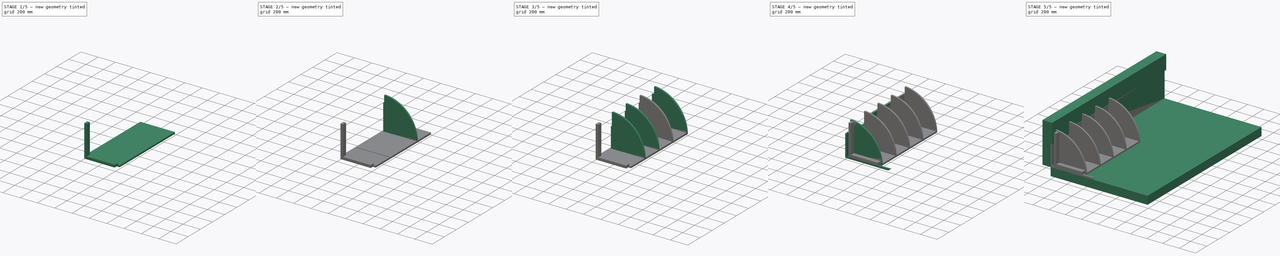
[diagram: build sequence overview — one tinted view per stage of 5, left to right]
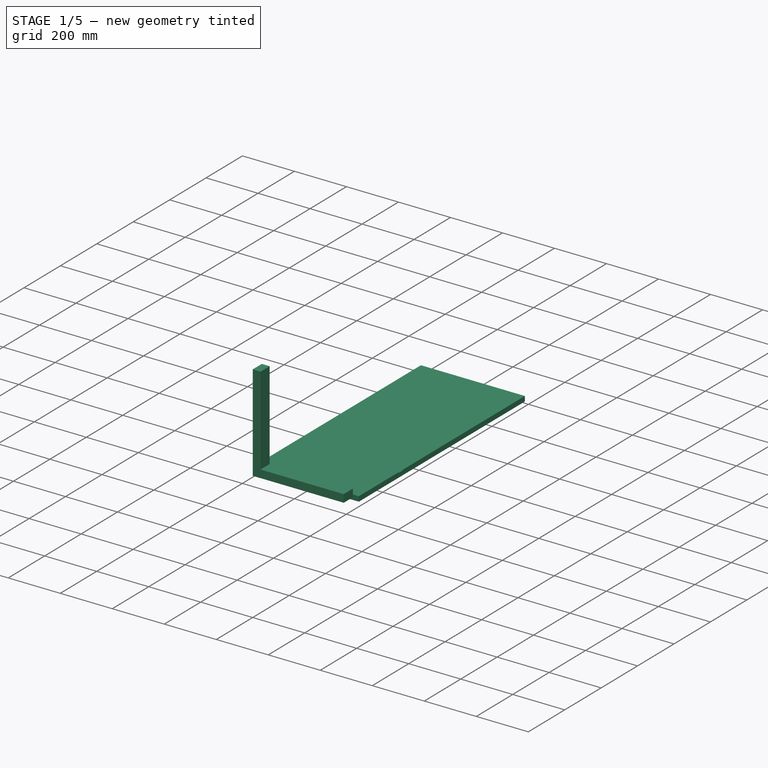
[diagram: stage 1 of 5 — iso view after this stage's code; geometry added in this stage tinted green]
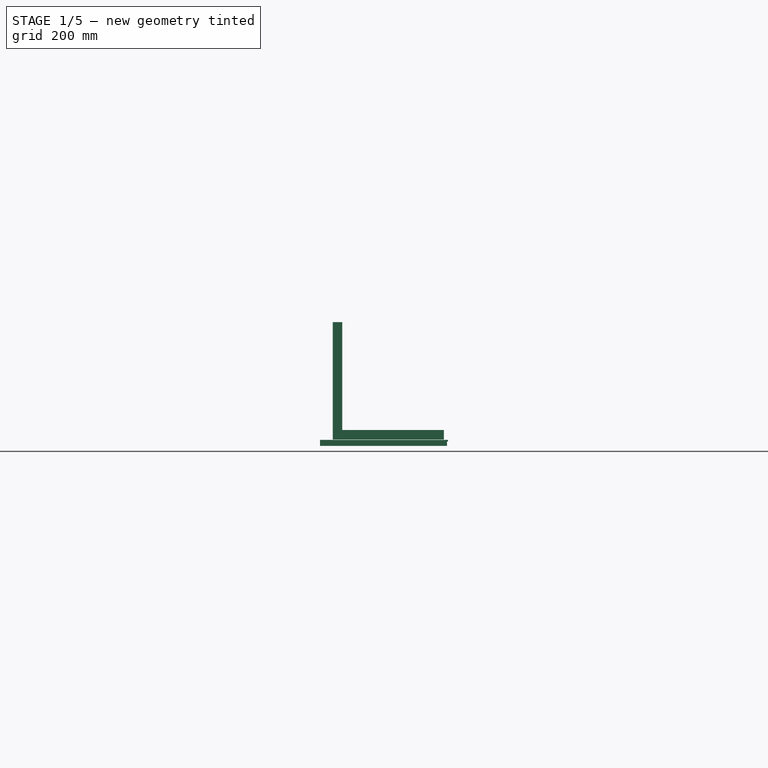
[diagram: stage 1 of 5 — front view after this stage's code; geometry added in this stage tinted green]
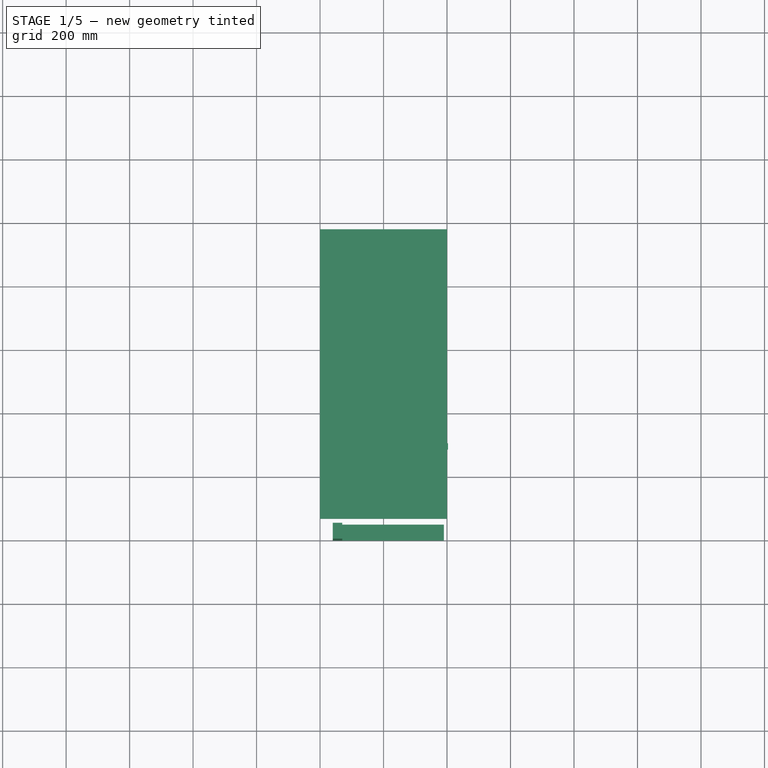
[diagram: stage 1 of 5 — top view after this stage's code; geometry added in this stage tinted green]
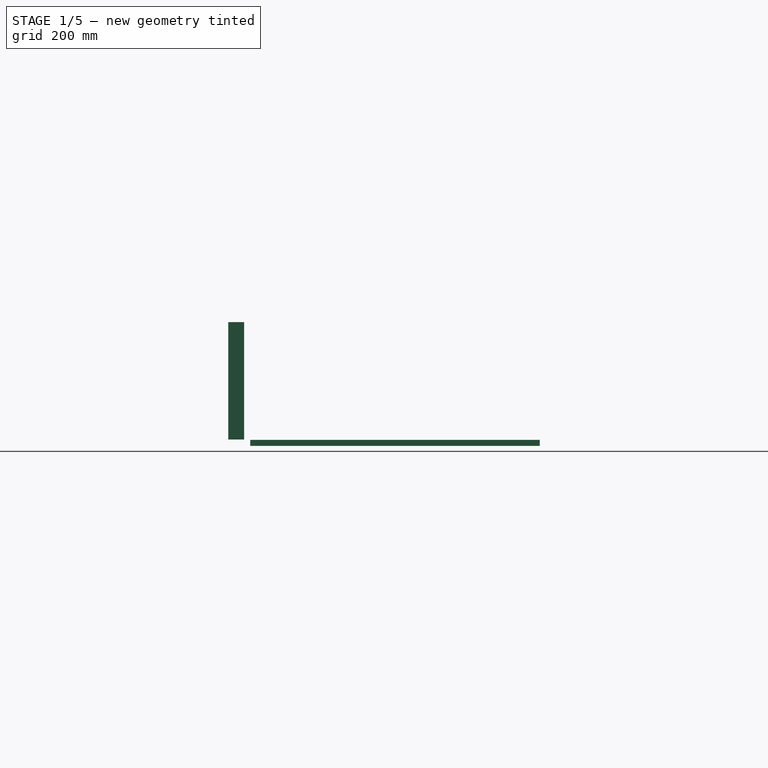
[diagram: stage 1 of 5 — right view after this stage's code; geometry added in this stage tinted green]
FCSTD DOCUMENT  (FreeCAD 0.18R16093 +53 (Git))
Label: Schuhschrank
License: All rights reserved
LicenseURL: http://en.wikipedia.org/wiki/All_rights_reserved
objects: Part::Extrusion×12, Sketcher::SketchObject×10, Part::Box×5, Part::FeaturePython×1, PartDesign::Body×1, Part::Cut×1
note: 30 computed .brp shape members not serialized (recipe doc carries the construction recipe); baked Part::Feature solids carry a one-line shape summary decoded from their .brp

FEATURE [Part::Extrusion] Extrude001  label="back_plate_1"
  Base = -> Sketch
  Dir = (0,0,1)
  DirMode = 2
  FaceMakerClass = Part::FaceMakerBullseye
  LengthFwd = 19
  LengthRev = 0
  Solid = true
  Symmetric = false
FEATURE [Part::Box] Box  label="Cube"
  AttacherType = Attacher::AttachEngine3D
  Height = 5
  Length = 386
  Placement = pos=(17,287,14) rot=(0,0,1;0rad)
  Width = 20
FEATURE [Part::Box] Box003  label="scanting_1"
  AttacherType = Attacher::AttachEngine3D
  Height = 30
  Length = 350
  Placement = pos=(40,0,20) rot=(0,0,1;0rad)
  Width = 50
FEATURE [Part::Box] Box004  label="scanting_2"
  AttacherType = Attacher::AttachEngine3D
  Height = 30
  Length = 340
  Placement = pos=(70,0,50) rot=(0,1,0;4.71239rad)
  Width = 50
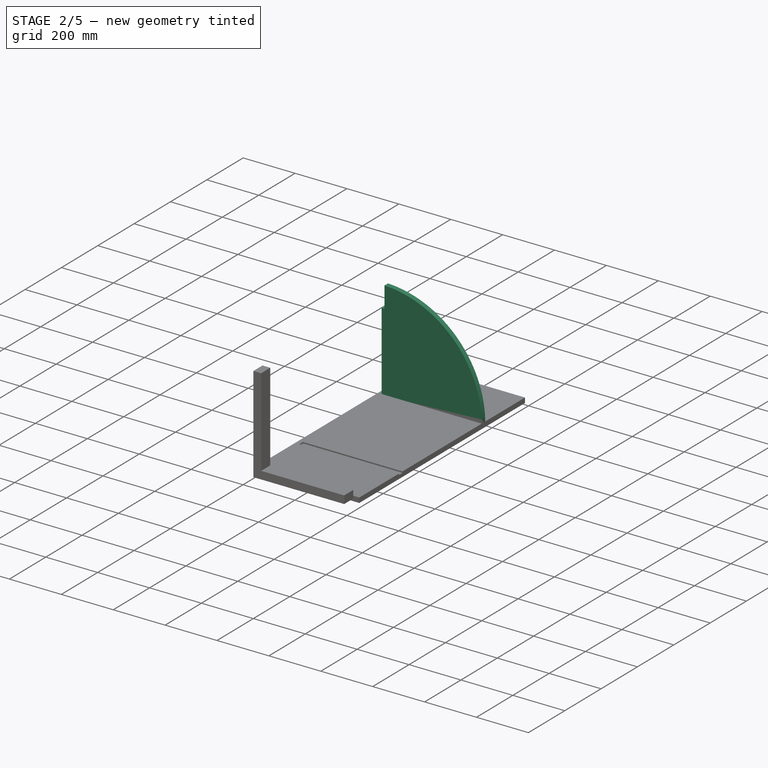
[diagram: stage 2 of 5 — iso view after this stage's code; geometry added in this stage tinted green]
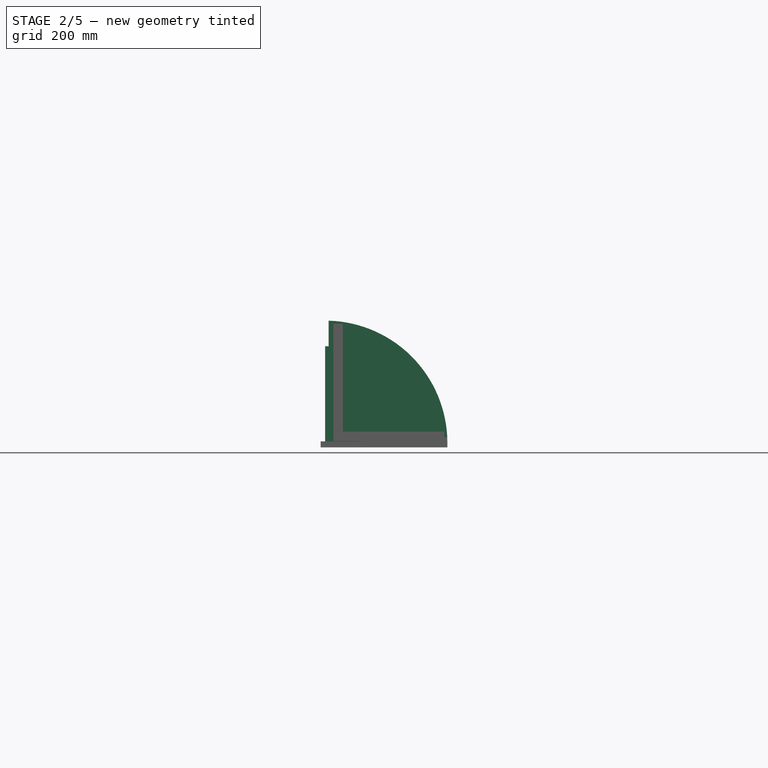
[diagram: stage 2 of 5 — front view after this stage's code; geometry added in this stage tinted green]
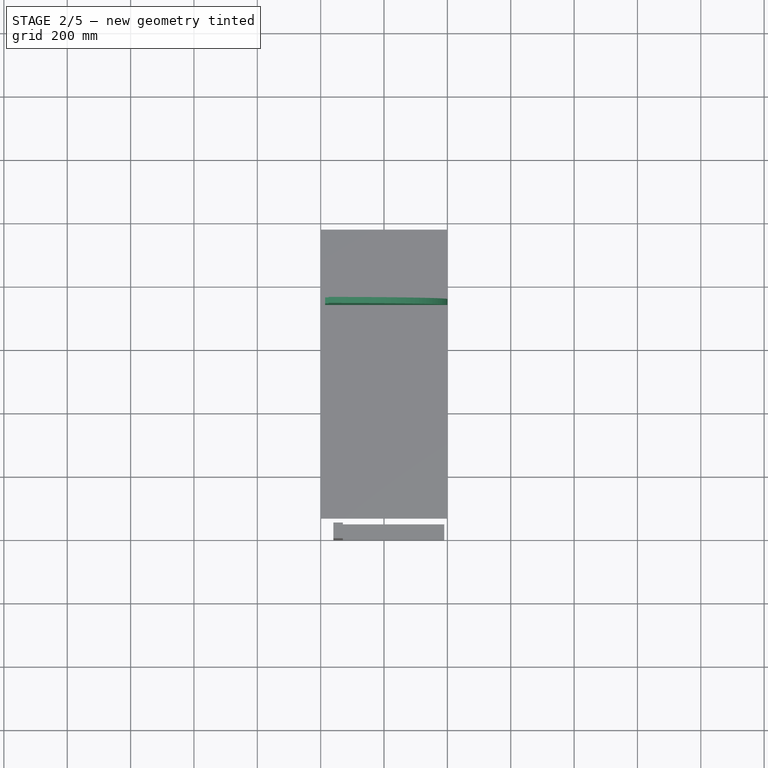
[diagram: stage 2 of 5 — top view after this stage's code; geometry added in this stage tinted green]
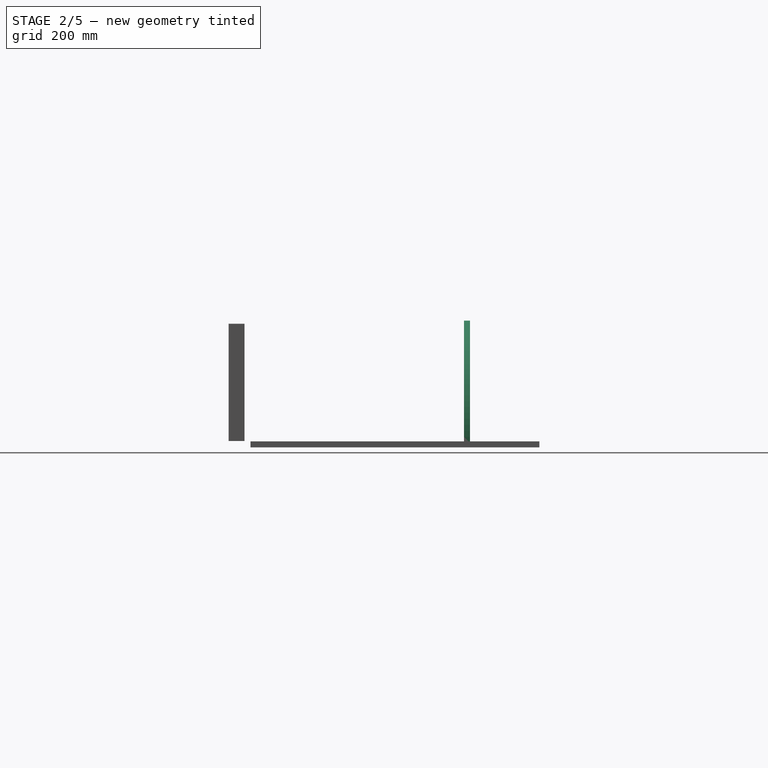
[diagram: stage 2 of 5 — right view after this stage's code; geometry added in this stage tinted green]
FEATURE [Part::Extrusion] Extrude013  label="plate_3"
  Base = -> Sketch009
  Dir = (0,-1,-2e-16)
  DirMode = 2
  FaceMakerClass = Part::FaceMakerBullseye
  LengthFwd = 19
  LengthRev = 0
  Placement = pos=(0,762,0) rot=(0,0,1;0rad)
  Solid = true
  Symmetric = false
FEATURE [Part::Box] Box001  label="Cube001"
  AttacherType = Attacher::AttachEngine3D
  Height = 5
  Length = 386
  Placement = pos=(14,515,14) rot=(0,0,1;0rad)
  Width = 20
FEATURE [Part::Box] Box002  label="Cube002"
  AttacherType = Attacher::AttachEngine3D
  Height = 5
  Length = 386
  Placement = pos=(14,743,14) rot=(0,0,1;0rad)
  Width = 20
FEATURE [Part::Cut] Cut
  Base = -> Extrude001
  Tool = -> Box
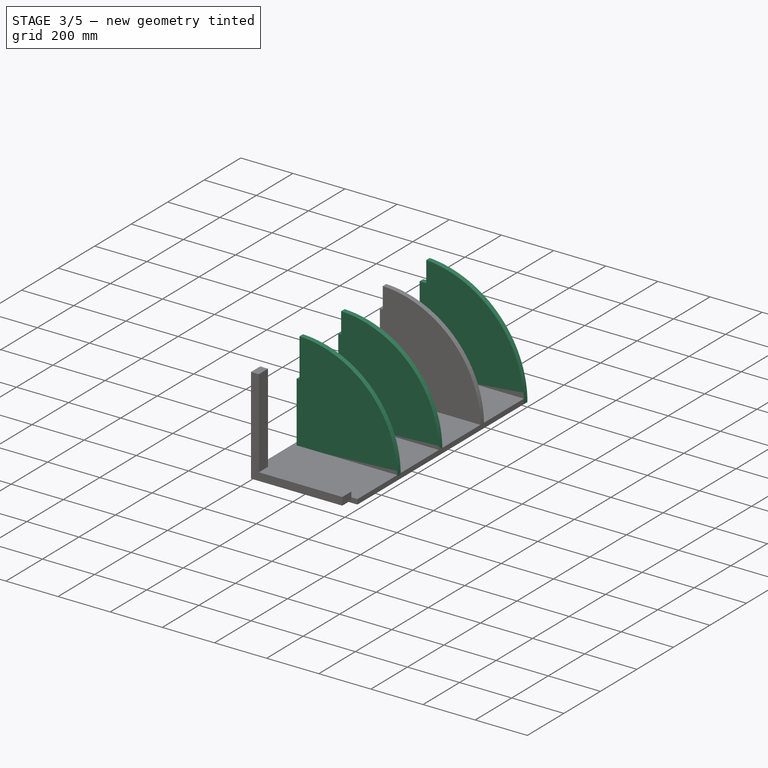
[diagram: stage 3 of 5 — iso view after this stage's code; geometry added in this stage tinted green]
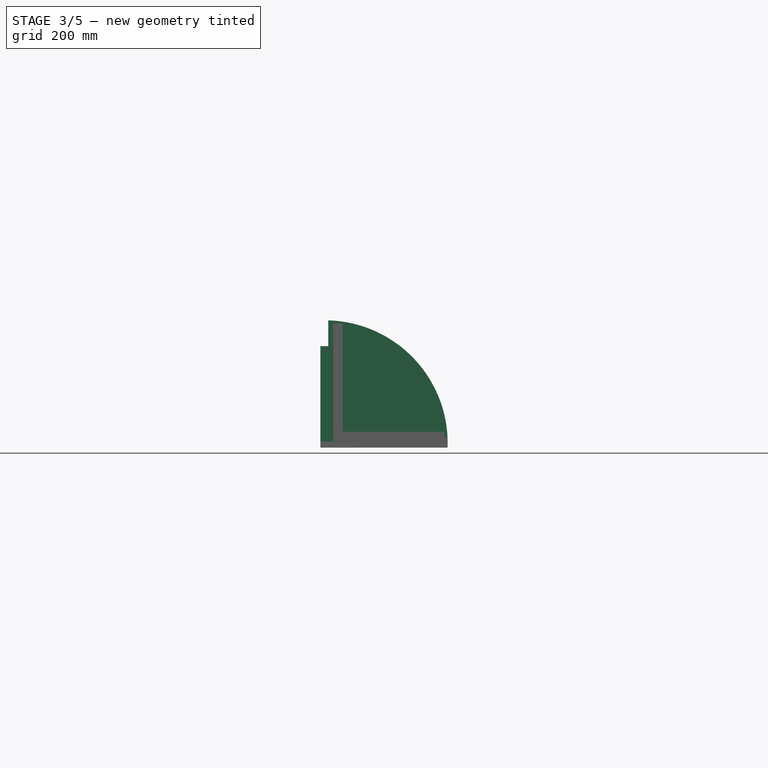
[diagram: stage 3 of 5 — front view after this stage's code; geometry added in this stage tinted green]
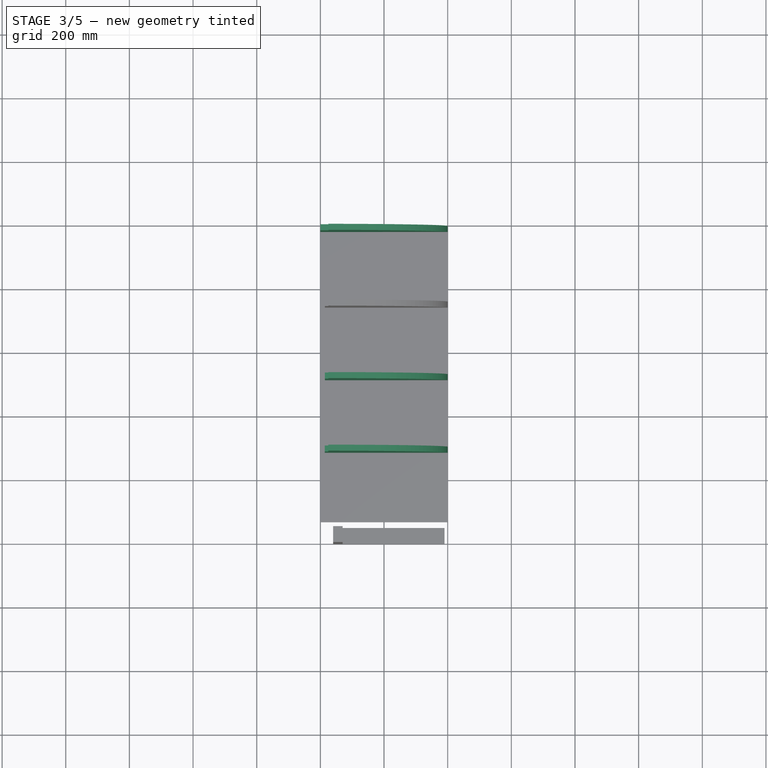
[diagram: stage 3 of 5 — top view after this stage's code; geometry added in this stage tinted green]
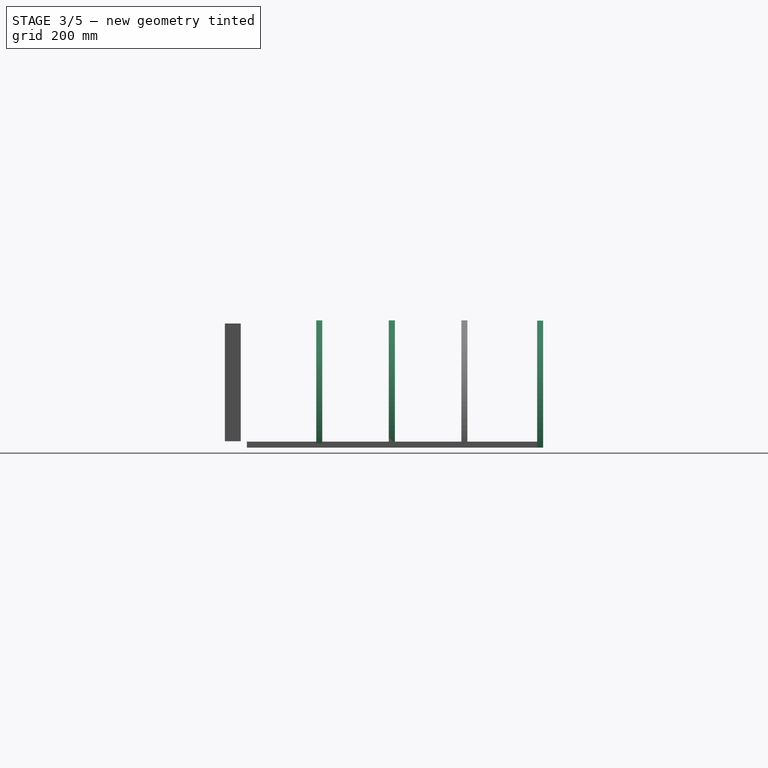
[diagram: stage 3 of 5 — right view after this stage's code; geometry added in this stage tinted green]
FEATURE [Sketcher::SketchObject] Sketch007  label="top_plate_sketch"
  MapMode = 5
  Placement = pos=(0,0,0) rot=(1,0,0;1.5708rad)
  Support = -> [XZ_Plane]
  sketch-geometry (5):
    g0: ArcOfCircle CenterX=0 CenterY=0 CenterZ=0 NormalX=0 NormalY=0 NormalZ=1 AngleXU=0 Radius=400 StartAngle=0 EndAngle=1.50826
    g1: LineSegment StartX=400 StartY=0 StartZ=0 EndX=0 EndY=0 EndZ=0
    g2: LineSegment StartX=-2.17e-14 StartY=0 StartZ=0 EndX=-2.17e-14 EndY=319 EndZ=0
    g3: LineSegment StartX=-2.17e-14 StartY=319 StartZ=0 EndX=25 EndY=319 EndZ=0
    g4: LineSegment StartX=25 StartY=319 StartZ=0 EndX=25 EndY=399.218 EndZ=0
  constraints (14):
    c: Coincident(g0,g-1)
    c: PointOnObject(g1,g-1)
    c: PointOnObject(g1,g-1)
    c: Coincident(g1,g2)
    c: Vertical(g2)
    c: Coincident(g0,g1)
    c: Radius(g0) = 400
    c: Distance(g2) = 319
    c: Coincident(g2,g3)
    c: Horizontal(g3)
    c: Coincident(g3,g4)
    c: Vertical(g4)
    c: Coincident(g0,g4)
    c: Distance(g3) = 25
FEATURE [Part::Extrusion] Extrude010  label="top_plate"
  Base = -> Sketch007
  Dir = (0,-1,-2e-16)
  DirMode = 2
  FaceMakerClass = Part::FaceMakerBullseye
  LengthFwd = 19
  LengthRev = 0
  Placement = pos=(0,1000,0) rot=(0,0,1;0rad)
  Solid = true
  Symmetric = false
FEATURE [Sketcher::SketchObject] Sketch008  label="plate_1_sketch"
  MapMode = 5
  Placement = pos=(0,0,0) rot=(1,0,0;1.5708rad)
  Support = -> [XZ_Plane]
  sketch-geometry (5):
    g0: ArcOfCircle CenterX=13.8949 CenterY=14 CenterZ=0 NormalX=0 NormalY=0 NormalZ=1 AngleXU=0 Radius=386 StartAngle=0 EndAngle=1.54239
    g1: LineSegment StartX=13.8949 StartY=14 StartZ=0 EndX=399.895 EndY=14 EndZ=0
    g2: LineSegment StartX=13.8949 StartY=14 StartZ=0 EndX=13.8949 EndY=250 EndZ=0
    g3: LineSegment StartX=13.8949 StartY=250 StartZ=0 EndX=24.8595 EndY=250 EndZ=0
    g4: LineSegment StartX=24.8595 StartY=250 StartZ=0 EndX=24.8595 EndY=399.844 EndZ=0
  constraints (11):
    c: Coincident(g1,g0)
    c: Coincident(g1,g0)
    c: Horizontal(g1)
    c: Coincident(g2,g0)
    c: Vertical(g2)
    c: Coincident(g2,g3)
    c: Horizontal(g3)
    c: Coincident(g3,g4)
    c: Vertical(g4)
    c: Radius(g0) = 386
    c: Coincident(g0,g4)
FEATURE [PartDesign::Body] Body
  Group = -> [Sketch,Sketch001,Sketch004,Sketch005,Sketch006,Sketch008]
  Origin = -> Origin
FEATURE [Part::Extrusion] Extrude011  label="plate_1"
  Base = -> Sketch008
  Dir = (0,-1,-2e-16)
  DirMode = 2
  FaceMakerClass = Part::FaceMakerBullseye
  LengthFwd = 19
  LengthRev = 0
  Placement = pos=(0,306,0) rot=(0,0,1;0rad)
  Solid = true
  Symmetric = false
FEATURE [Sketcher::SketchObject] Sketch009  label="plate_2_sketch"
  MapMode = 5
  Placement = pos=(0,0,0) rot=(1,0,0;1.5708rad)
  Support = -> [XZ_Plane]
  sketch-geometry (5):
    g0: ArcOfCircle CenterX=13.9998 CenterY=14 CenterZ=0 NormalX=0 NormalY=0 NormalZ=1 AngleXU=0 Radius=386 StartAngle=0 EndAngle=1.5423
    g1: LineSegment StartX=13.9998 StartY=14 StartZ=0 EndX=400 EndY=14 EndZ=0
    g2: LineSegment StartX=13.9998 StartY=14 StartZ=0 EndX=13.9998 EndY=319 EndZ=0
    g3: LineSegment StartX=13.9998 StartY=319 StartZ=0 EndX=24.9998 EndY=319 EndZ=0
    g4: LineSegment StartX=24.9998 StartY=319 StartZ=0 EndX=24.9998 EndY=399.843 EndZ=0
  constraints (13):
    c: Coincident(g1,g0)
    c: Coincident(g1,g0)
    c: Horizontal(g1)
    c: Coincident(g2,g0)
    c: Vertical(g2)
    c: Coincident(g2,g3)
    c: Horizontal(g3)
    c: Coincident(g3,g4)
    c: Vertical(g4)
    c: Radius(g0) = 386
    c: Coincident(g0,g4)
    c: Distance(g2) = 305
    c: Distance(g3) = 11
FEATURE [Part::Extrusion] Extrude012  label="plate_2"
  Base = -> Sketch009
  Dir = (0,-1,-2e-16)
  DirMode = 2
  FaceMakerClass = Part::FaceMakerBullseye
  LengthFwd = 19
  LengthRev = 0
  Placement = pos=(0,534,0) rot=(0,0,1;0rad)
  Solid = true
  Symmetric = false
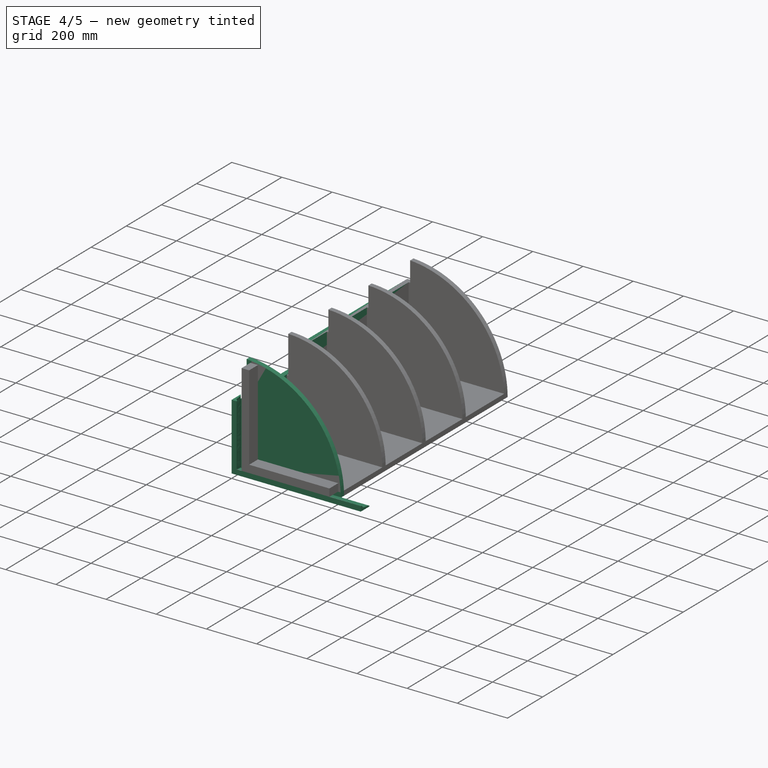
[diagram: stage 4 of 5 — iso view after this stage's code; geometry added in this stage tinted green]
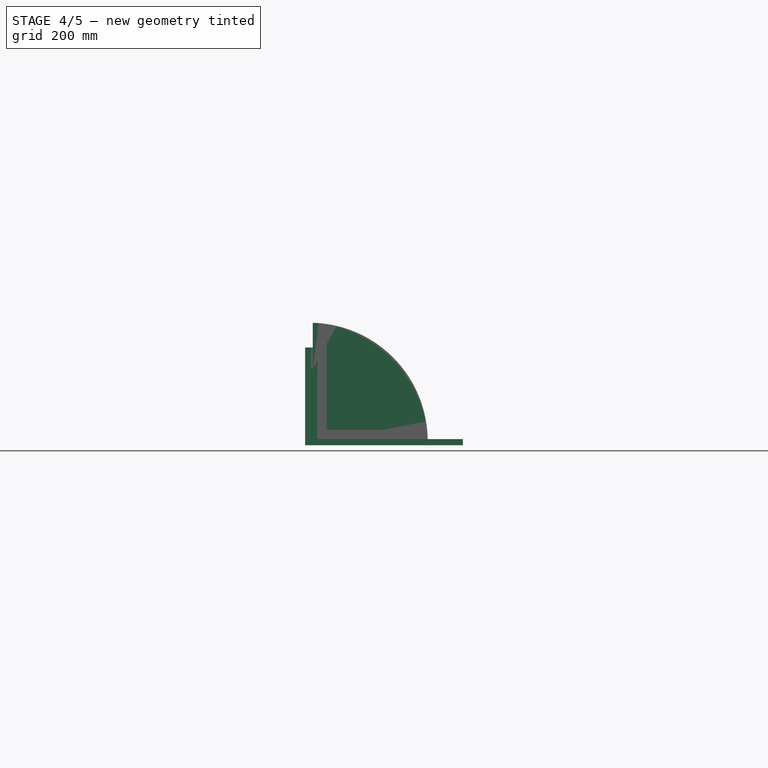
[diagram: stage 4 of 5 — front view after this stage's code; geometry added in this stage tinted green]
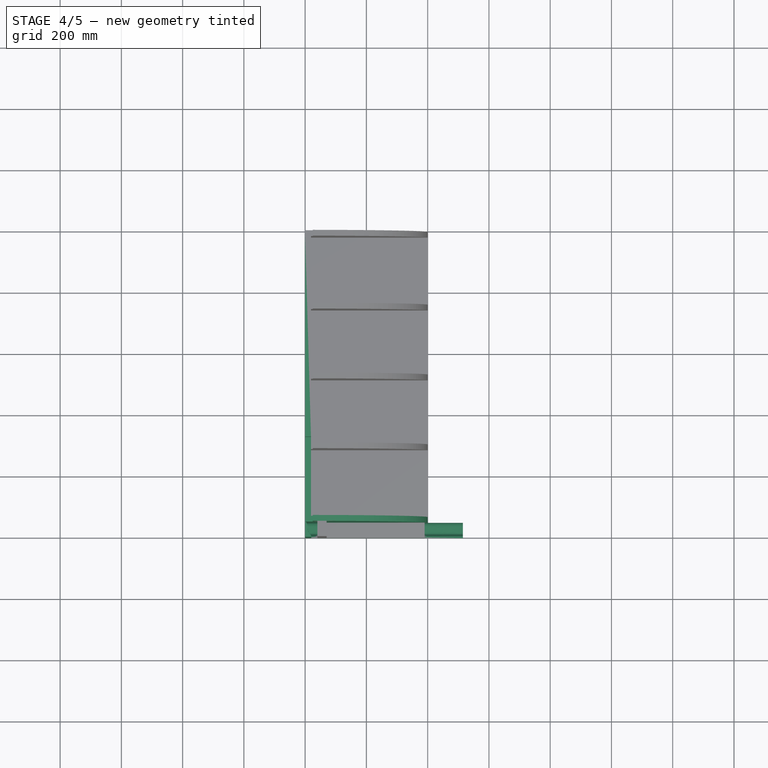
[diagram: stage 4 of 5 — top view after this stage's code; geometry added in this stage tinted green]
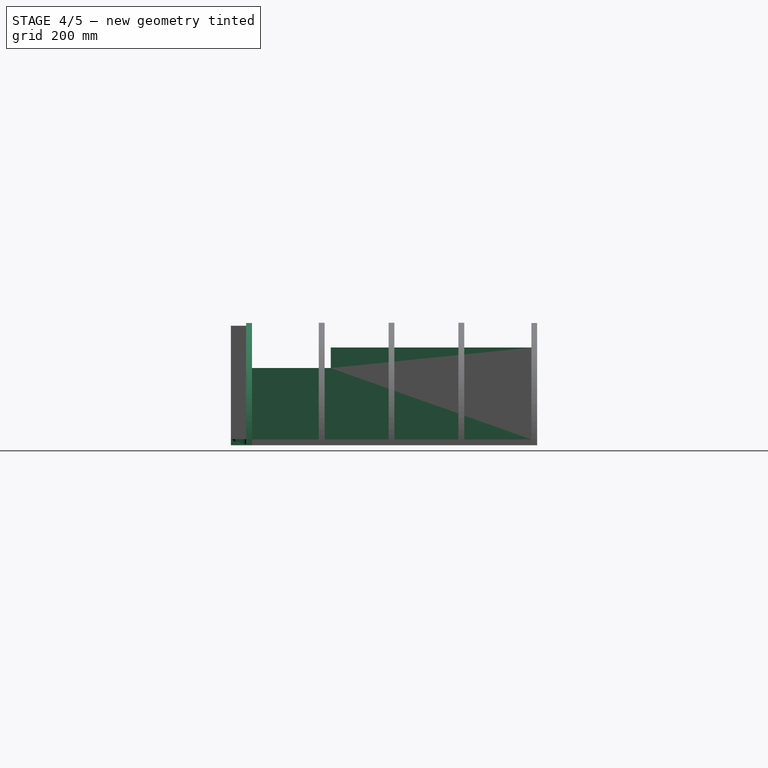
[diagram: stage 4 of 5 — right view after this stage's code; geometry added in this stage tinted green]
FEATURE [Sketcher::SketchObject] Sketch004  label="baseboard_sketch"
  MapMode = 5
  Placement = pos=(0,0,0) rot=(0.57735,0.57735,0.57735;2.0944rad)
  Support = -> [YZ_Plane]
  sketch-geometry (13):
    g0: LineSegment StartX=50 StartY=0 StartZ=0 EndX=0 EndY=0 EndZ=0
    g1: LineSegment StartX=0 StartY=0 StartZ=0 EndX=0 EndY=20 EndZ=0
    g2-g7: Circle [constr] x6 (B-spline internal-alignment scaffolding for g8; pole/knot coordinates omitted)
    g8: BSplineCurve PolesCount=6 KnotsCount=4 Degree=3 IsPeriodic=0
    g9: GeomPoint [constr] X=50 Y=0 Z=0
    g10: GeomPoint [constr] X=38.3821 Y=7.02369 Z=0
    g11: GeomPoint [constr] X=13.3949 Y=10.8232 Z=0
    g12: GeomPoint [constr] X=0 Y=20 Z=0
  constraints (14):
    c: PointOnObject(g0,g-1)
    c: Coincident(g0,g-1)
    c: Coincident(g0,g1)
    c: PointOnObject(g1,g-2)
    c: Coincident(g8,g0)
    c: Radius(g2) = 0.3
    c: Equal(g2, g3-g7) x5
    c: Coincident(g8,g1)
    c: InternalAlignment(g2-g7 -> g8) x6
    c: InternalAlignment(g9,g8)
    c: InternalAlignment(g10,g8)
    c: InternalAlignment(g12,g8)
    c: Distance(g1) = 20
    c: Distance(g0) = 50
FEATURE [Part::Extrusion] Extrude006  label="baseboard_1"
  Base = -> Sketch004
  Dir = (1,-2e-16,3e-16)
  DirMode = 2
  FaceMakerClass = Part::FaceMakerBullseye
  LengthFwd = 515
  LengthRev = 0
  Solid = true
  Symmetric = false
FEATURE [Part::Extrusion] Extrude007  label="baseboard_2"
  Base = -> Sketch004
  Dir = (1,-2e-16,3e-16)
  DirMode = 2
  FaceMakerClass = Part::FaceMakerBullseye
  LengthFwd = 263
  LengthRev = 0
  Placement = pos=(0,0,265) rot=(0,1,0;1.5708rad)
  Solid = true
  Symmetric = false
FEATURE [Sketcher::SketchObject] Sketch005  label="backplate_2_sketch"
  MapMode = 5
  Placement = pos=(0,0,0) rot=(0.57735,0.57735,0.57735;2.0944rad)
  Support = -> [YZ_Plane]
  sketch-geometry (6):
    g0: LineSegment StartX=68.9919 StartY=18.9664 StartZ=0 EndX=68.9919 EndY=251.966 EndZ=0
    g1: LineSegment StartX=68.9919 StartY=251.966 StartZ=0 EndX=325.992 EndY=251.966 EndZ=0
    g2: LineSegment StartX=325.992 StartY=251.966 StartZ=0 EndX=325.992 EndY=318.966 EndZ=0
    g3: LineSegment StartX=325.992 StartY=318.966 StartZ=0 EndX=980.992 EndY=318.966 EndZ=0
    g4: LineSegment StartX=980.992 StartY=318.966 StartZ=0 EndX=980.992 EndY=18.9664 EndZ=0
    g5: LineSegment StartX=980.992 StartY=18.9664 StartZ=0 EndX=68.9919 EndY=18.9664 EndZ=0
  constraints (16):
    c: Vertical(g0)
    c: Coincident(g0,g1)
    c: Horizontal(g1)
    c: Coincident(g1,g2)
    c: Vertical(g2)
    c: Coincident(g2,g3)
    c: Horizontal(g3)
    c: Coincident(g3,g4)
    c: Vertical(g4)
    c: Coincident(g4,g5)
    c: Coincident(g5,g0)
    c: Horizontal(g5)
    c: Distance(g5) = 912
    c: Distance(g3) = 655
    c: Distance(g2) = 67
    c: Distance(g4) = 300
FEATURE [Part::Extrusion] Extrude008  label="backplate_2"
  Base = -> Sketch005
  Dir = (1,-2e-16,3e-16)
  DirMode = 2
  FaceMakerClass = Part::FaceMakerBullseye
  LengthFwd = 19
  LengthRev = 0
  Solid = true
  Symmetric = false
FEATURE [Sketcher::SketchObject] Sketch006  label="bottom_plate_sketch"
  MapMode = 5
  Placement = pos=(0,0,0) rot=(1,0,0;1.5708rad)
  Support = -> [XZ_Plane]
  sketch-geometry (5):
    g0: ArcOfCircle CenterX=0 CenterY=0 CenterZ=0 NormalX=0 NormalY=0 NormalZ=1 AngleXU=0 Radius=400 StartAngle=0 EndAngle=1.50826
    g1: LineSegment StartX=400 StartY=0 StartZ=0 EndX=0 EndY=0 EndZ=0
    g2: LineSegment StartX=0 StartY=0 StartZ=0 EndX=0 EndY=250 EndZ=0
    g3: LineSegment StartX=0 StartY=250 StartZ=0 EndX=25 EndY=250 EndZ=0
    g4: LineSegment StartX=25 StartY=250 StartZ=0 EndX=25 EndY=399.218 EndZ=0
  constraints (15):
    c: Coincident(g0,g-1)
    c: Radius(g0) = 400
    c: PointOnObject(g1,g-1)
    c: PointOnObject(g1,g-1)
    c: Coincident(g1,g2)
    c: PointOnObject(g2,g-2)
    c: Vertical(g2)
    c: Coincident(g2,g3)
    c: Horizontal(g3)
    c: Coincident(g3,g4)
    c: Vertical(g4)
    c: Coincident(g0,g1)
    c: Coincident(g0,g4)
    c: Distance(g2) = 250
    c: Distance(g3) = 25
FEATURE [Part::Extrusion] Extrude009  label="bottom_plate"
  Base = -> Sketch006
  Dir = (0,-1,-2e-16)
  DirMode = 2
  FaceMakerClass = Part::FaceMakerBullseye
  LengthFwd = 19
  LengthRev = 0
  Placement = pos=(0,69,0) rot=(0,0,1;0rad)
  Solid = true
  Symmetric = false
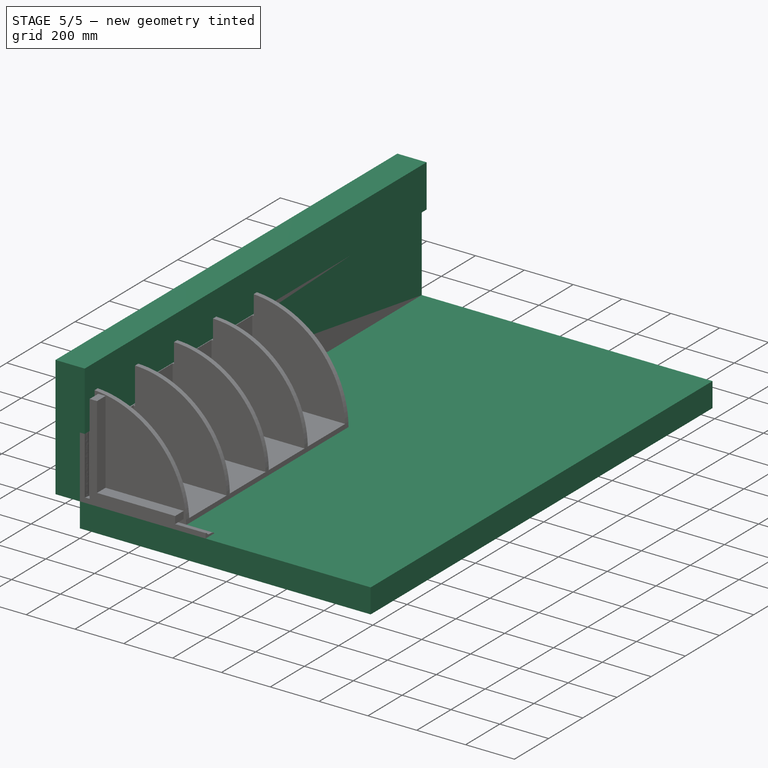
[diagram: stage 5 of 5 — iso view after this stage's code; geometry added in this stage tinted green]
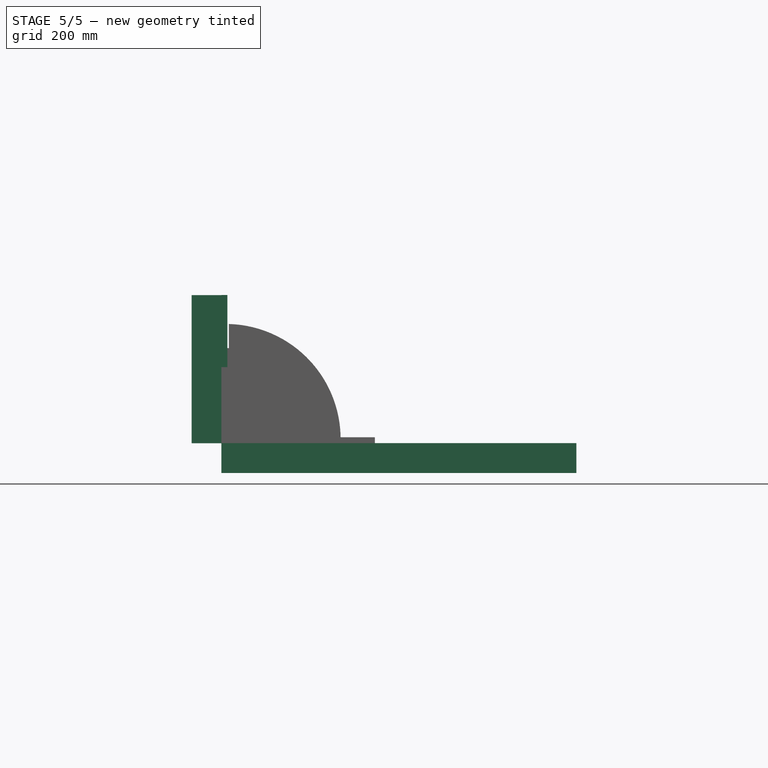
[diagram: stage 5 of 5 — front view after this stage's code; geometry added in this stage tinted green]
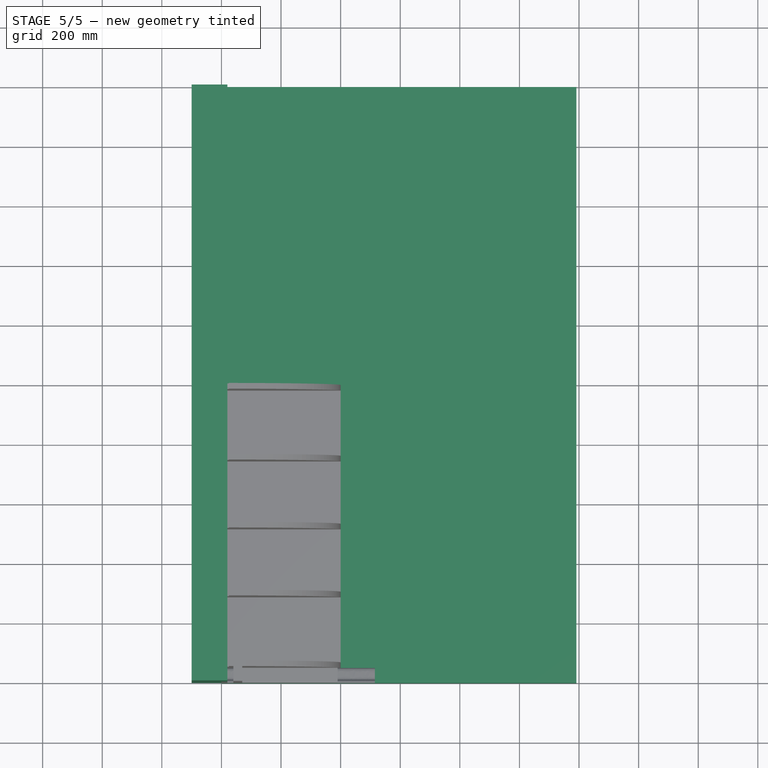
[diagram: stage 5 of 5 — top view after this stage's code; geometry added in this stage tinted green]
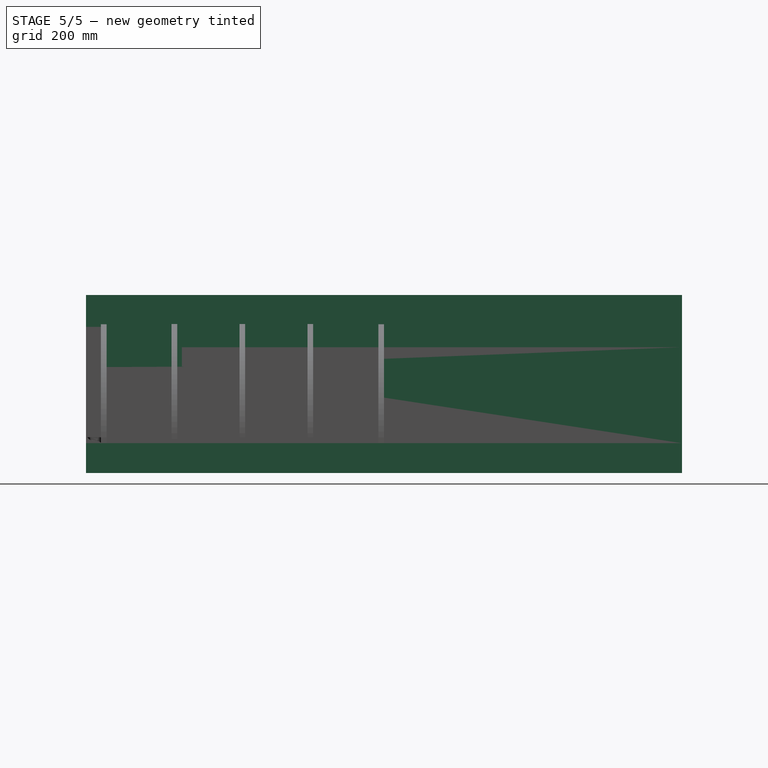
[diagram: stage 5 of 5 — right view after this stage's code; geometry added in this stage tinted green]
FEATURE [Sketcher::SketchObject] Sketch  label="back_plate_1_sketch"
  MapMode = 5
  Support = -> [XY_Plane]
  sketch-geometry (4):
    g0: LineSegment StartX=-0.149868 StartY=68.9906 StartZ=0 EndX=399.85 EndY=68.9906 EndZ=0
    g1: LineSegment StartX=399.85 StartY=68.9906 StartZ=0 EndX=399.85 EndY=980.991 EndZ=0
    g2: LineSegment StartX=399.85 StartY=980.991 StartZ=0 EndX=-0.149868 EndY=980.991 EndZ=0
    g3: LineSegment StartX=-0.149868 StartY=980.991 StartZ=0 EndX=-0.149868 EndY=68.9906 EndZ=0
  constraints (10):
    c: Coincident(g0,g1)
    c: Coincident(g1,g2)
    c: Coincident(g2,g3)
    c: Coincident(g3,g0)
    c: Horizontal(g0)
    c: Horizontal(g2)
    c: Vertical(g1)
    c: Vertical(g3)
    c: Distance(g3) = 912  'back_plate_height'
    c: Distance(g2) = 400  'back_plate_1_width'
FEATURE [Sketcher::SketchObject] Sketch001  label="wall_1_sketch"
  MapMode = 5
  Support = -> [XY_Plane]
  sketch-geometry (4):
    g0: LineSegment StartX=0 StartY=0 StartZ=0 EndX=1191.15 EndY=0 EndZ=0
    g1: LineSegment StartX=1191.15 StartY=0 StartZ=0 EndX=1191.15 EndY=2000 EndZ=0
    g2: LineSegment StartX=1191.15 StartY=2000 StartZ=0 EndX=0 EndY=2000 EndZ=0
    g3: LineSegment StartX=0 StartY=2000 StartZ=0 EndX=0 EndY=0 EndZ=0
  constraints (9):
    c: Coincident(g0,g1)
    c: Coincident(g1,g2)
    c: Coincident(g2,g3)
    c: Coincident(g3,g0)
    c: Horizontal(g0)
    c: Horizontal(g2)
    c: Vertical(g1)
    c: Vertical(g3)
    c: Distance(g1) = 2000
FEATURE [Part::Extrusion] Extrude  label="wall_1"
  Base = -> Sketch001
  Dir = (0,0,1)
  DirMode = 2
  FaceMakerClass = Part::FaceMakerBullseye
  LengthFwd = 100
  LengthRev = 0
  Placement = pos=(0,0,-100) rot=(0,0,1;0rad)
  Solid = true
  Symmetric = false
FEATURE [Sketcher::SketchObject] Sketch002  label="wall2_back_sketch"
  Placement = pos=(0,0,0) rot=(0.57735,0.57735,0.57735;2.0944rad)
  sketch-geometry (4):
    g0: LineSegment StartX=0 StartY=-0.171573 StartZ=0 EndX=2000 EndY=-0.171573 EndZ=0
    g1: LineSegment StartX=2000 StartY=-0.171573 StartZ=0 EndX=2000 EndY=496.828 EndZ=0
    g2: LineSegment StartX=2000 StartY=496.828 StartZ=0 EndX=0 EndY=496.828 EndZ=0
    g3: LineSegment StartX=0 StartY=496.828 StartZ=0 EndX=0 EndY=-0.171573 EndZ=0
  constraints (10):
    c: Coincident(g0,g1)
    c: Coincident(g1,g2)
    c: Coincident(g2,g3)
    c: Coincident(g3,g0)
    c: Horizontal(g0)
    c: Horizontal(g2)
    c: Vertical(g1)
    c: Vertical(g3)
    c: Distance(g1) = 497
    c: Distance(g2) = 2000  'wall_height'
FEATURE [Part::Extrusion] Extrude002  label="wall_2_back"
  Base = -> Sketch002
  Dir = (1,0,0)
  DirMode = 2
  FaceMakerClass = Part::FaceMakerBullseye
  LengthFwd = 100
  LengthRev = 0
  Placement = pos=(-100,0,0) rot=(0,0,1;0rad)
  Solid = true
  Symmetric = false
FEATURE [Sketcher::SketchObject] Sketch003  label="wall_2_front_sketch"
  Placement = pos=(0,0,0) rot=(0.57735,0.57735,0.57735;2.0944rad)
  sketch-geometry (6):
    g0: LineSegment StartX=-0.239416 StartY=497.019 StartZ=0 EndX=-0.239416 EndY=255.019 EndZ=0
    g1: LineSegment StartX=-0.239416 StartY=255.019 StartZ=0 EndX=321.757 EndY=256.604 EndZ=0
    g2: LineSegment StartX=321.757 StartY=256.604 StartZ=0 EndX=321.757 EndY=322.019 EndZ=0
    g3: LineSegment StartX=321.757 StartY=322.019 StartZ=0 EndX=1999.76 EndY=322.019 EndZ=0
    g4: LineSegment StartX=1999.76 StartY=322.019 StartZ=0 EndX=1999.76 EndY=497.019 EndZ=0
    g5: LineSegment StartX=1999.76 StartY=497.019 StartZ=0 EndX=-0.239416 EndY=497.019 EndZ=0
  constraints (15):
    c: Coincident(g0,g1)
    c: Coincident(g1,g2)
    c: Coincident(g2,g3)
    c: Coincident(g3,g4)
    c: Coincident(g4,g5)
    c: Coincident(g5,g0)
    c: Distance(g5) = 2000
    c: Distance(g0) = 242
    c: Perpendicular(g5,g0)
    c: Distance(g1) = 322
    c: Horizontal(g5)
    c: Vertical(g4)
    c: Distance(g4) = 175
    c: Horizontal(g3)
    c: Vertical(g2)
FEATURE [Part::Extrusion] Extrude003  label="wall_2_front"
  Base = -> Sketch003
  Dir = (1,0,0)
  DirMode = 2
  FaceMakerClass = Part::FaceMakerBullseye
  LengthFwd = 20
  LengthRev = 0
  Solid = true
  Symmetric = false
FEATURE [Part::FeaturePython] Connect  label="wall_2"  # WARN: FeaturePython — macro-defined, semantics opaque (R4)
  Objects = -> [Extrude003,Extrude002]
  Tolerance = 0
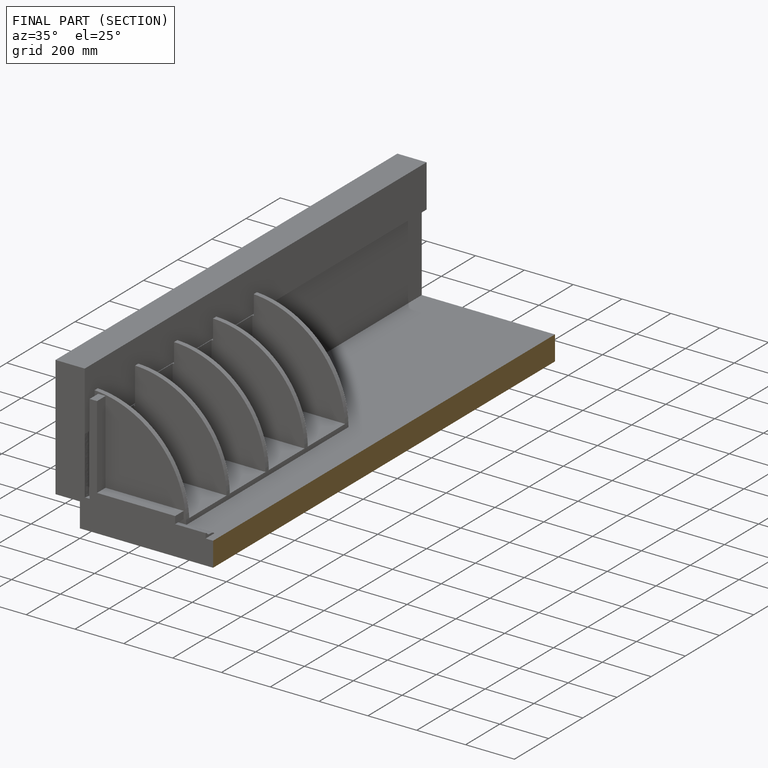
[diagram: finished part — half-section view (interior)]
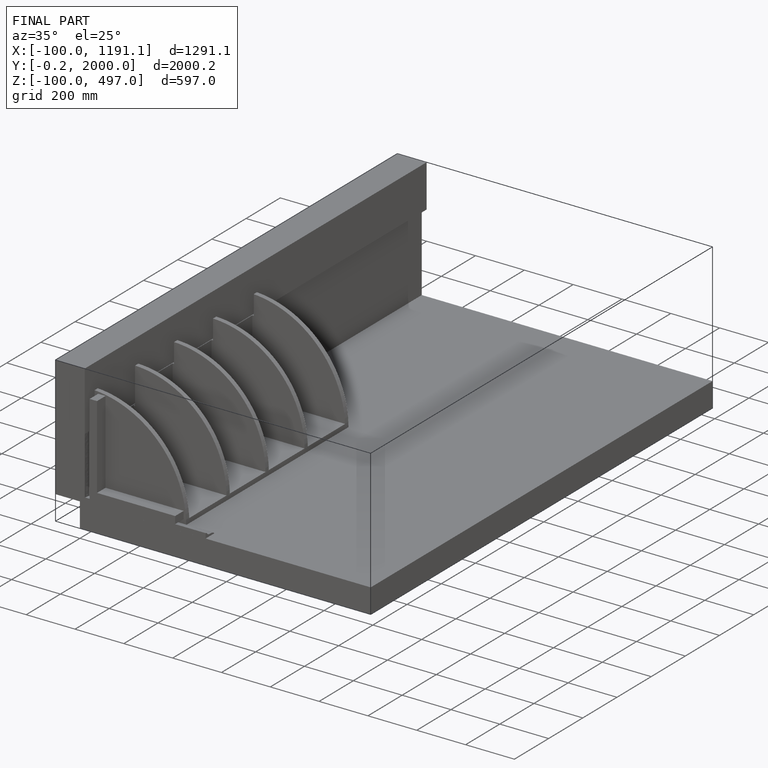
[diagram: finished part — iso view with bounding-box wireframe]
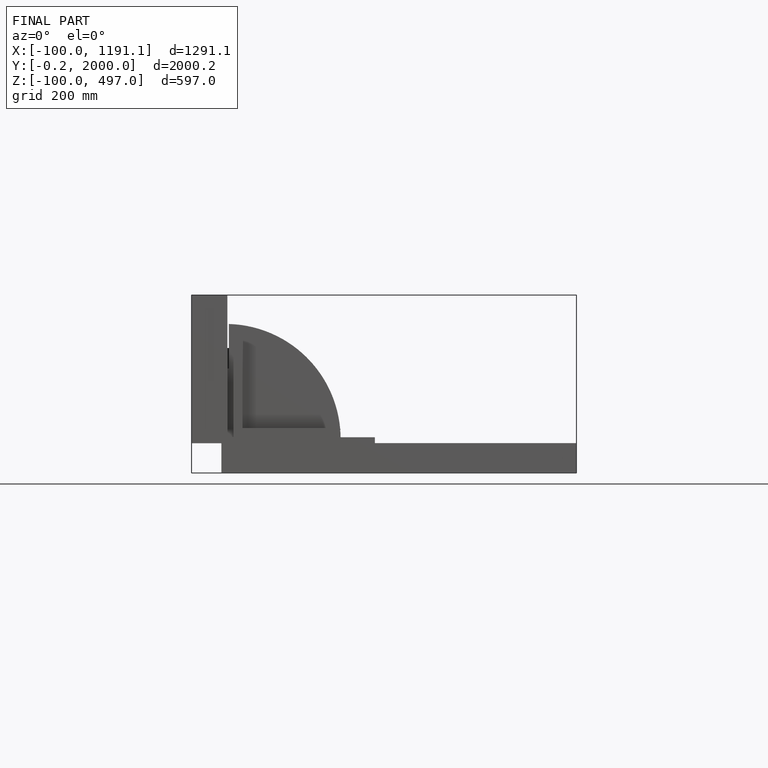
[diagram: finished part — front view with bounding-box wireframe]
